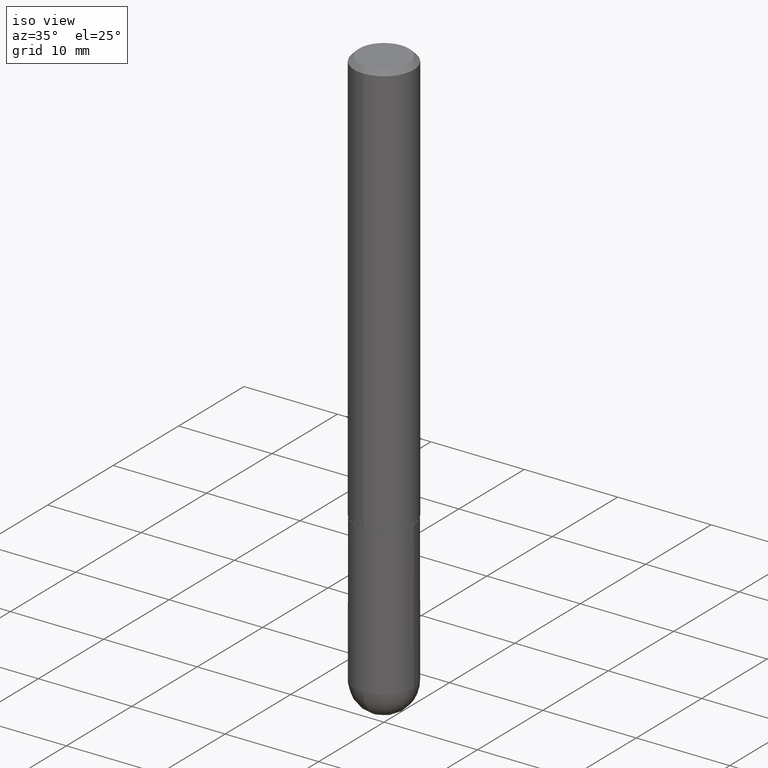
[diagram: clean part render]
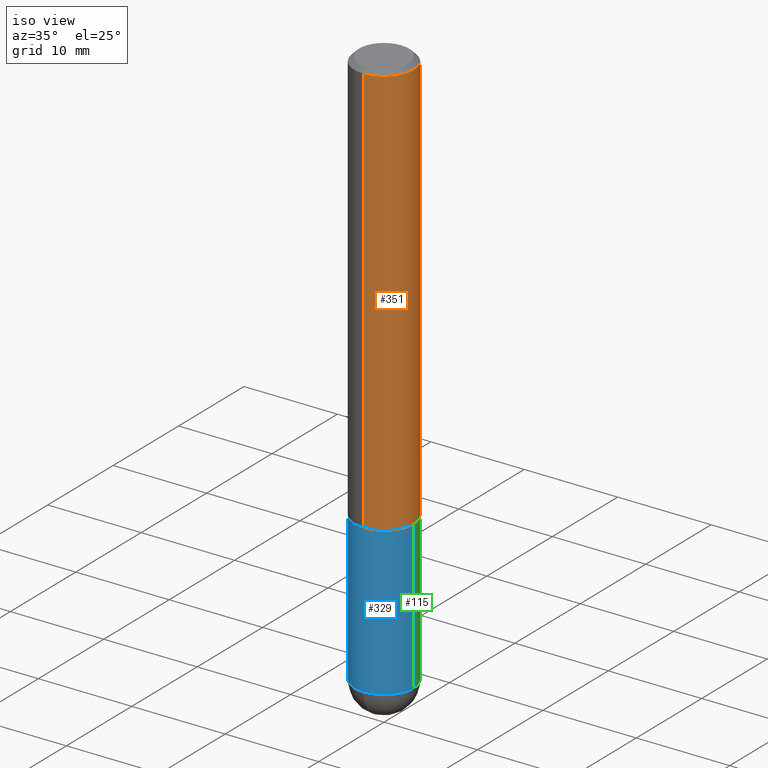
[diagram: same view with three faces highlighted in distinct colors, each labeled with its STEP entity id]
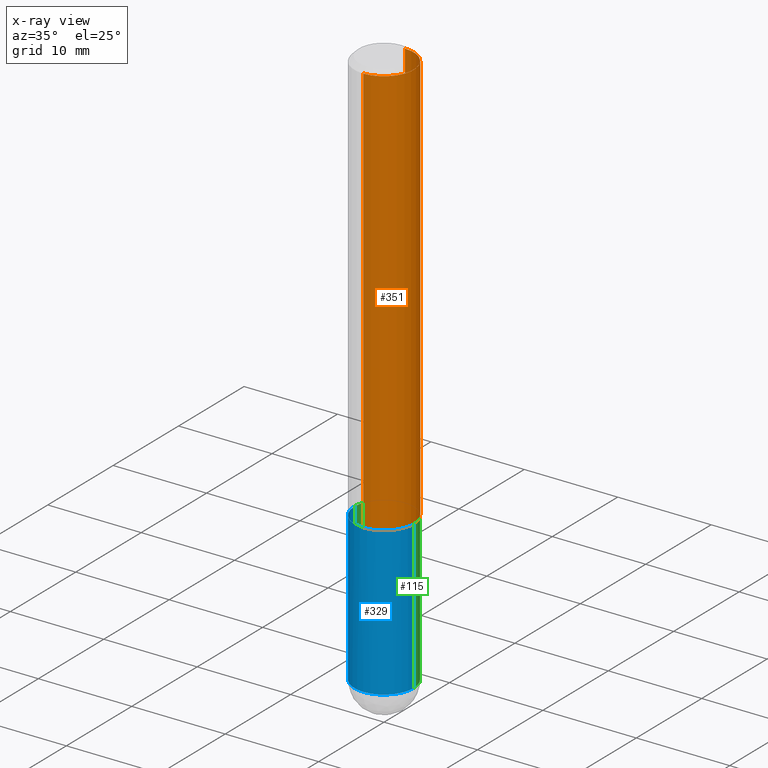
[diagram: x-ray of the same camera — body ghosted, the three highlighted faces saturated]
A machine part, iso view with three faces highlighted in distinct colors.
The next image is the same camera in x-ray (body ghosted, the three faces saturated) — at least one of them is partly hidden behind the body in this view.
Their STEP definitions:

[orange] entity #351 — the highlighted cylindrical surface (edge-blend (fillet) strip) has radius 3.175 mm, axis along (-0, 0, 1).
#24 = DIRECTION ( 'NONE',  ( -6.982962677686266711E-15, -1.000000000000000000, 3.491141472859906642E-15 ) ) ;
#27 = ORIENTED_EDGE ( 'NONE', *, *, #287, .T. ) ;
#28 = ORIENTED_EDGE ( 'NONE', *, *, #199, .F. ) ;
#38 = CARTESIAN_POINT ( 'NONE',  ( 4.277540027199021844E-29, -6.106006436031975850E-15, -1.749000000000000110 ) ) ;
#40 = AXIS2_PLACEMENT_3D ( 'NONE', #279, #216, #24 ) ;
#74 = CARTESIAN_POINT ( 'NONE',  ( 8.728703347107837333E-16, 0.1249999999999999306, -0.02000000000000046185 ) ) ;
#93 = ORIENTED_EDGE ( 'NONE', *, *, #258, .T. ) ;
#99 = VERTEX_POINT ( 'NONE', #409 ) ;
#108 = CARTESIAN_POINT ( 'NONE',  ( -8.728703347107841277E-16, -0.1250000000000001110, 4.363926841074887247E-16 ) ) ;
#140 = DIRECTION ( 'NONE',  ( -2.445706133332774021E-29, 3.491141472859906642E-15, 1.000000000000000000 ) ) ;
#199 = EDGE_CURVE ( 'NONE', #337, #99, #388, .T. ) ;
#201 = AXIS2_PLACEMENT_3D ( 'NONE', #38, #140, #363 ) ;
#211 = EDGE_CURVE ( 'NONE', #99, #288, #342, .T. ) ;
#212 = CARTESIAN_POINT ( 'NONE',  ( 4.891412266665553962E-31, -6.982282945719821124E-17, -0.02000000000000002470 ) ) ;
#216 = DIRECTION ( 'NONE',  ( -2.445706133332774021E-29, 3.491141472859906642E-15, 1.000000000000000000 ) ) ;
#217 = EDGE_LOOP ( 'NONE', ( #93, #27, #278, #28 ) ) ;
#222 = AXIS2_PLACEMENT_3D ( 'NONE', #212, #328, #238 ) ;
#238 = DIRECTION ( 'NONE',  ( -6.982962677686265922E-15, -1.000000000000000000, 3.483106191921935554E-15 ) ) ;
#241 = CARTESIAN_POINT ( 'NONE',  ( 8.881784197001479121E-16, 0.1249999999999941019, -1.749000000000000554 ) ) ;
#256 = VERTEX_POINT ( 'NONE', #241 ) ;
#258 = EDGE_CURVE ( 'NONE', #337, #256, #374, .T. ) ;
#272 = CARTESIAN_POINT ( 'NONE',  ( 8.881784197001260212E-16, 0.1250000000000001110, -4.363926841074887247E-16 ) ) ;
#276 = DIRECTION ( 'NONE',  ( -2.445706133332773740E-29, 3.491141472859906642E-15, 1.000000000000000000 ) ) ;
#278 = ORIENTED_EDGE ( 'NONE', *, *, #211, .F. ) ;
#279 = CARTESIAN_POINT ( 'NONE',  ( 0.000000000000000000, 0.000000000000000000, 0.000000000000000000 ) ) ;
#281 = VECTOR ( 'NONE', #276, 39.37007874015748143 ) ;
#287 = EDGE_CURVE ( 'NONE', #256, #288, #357, .T. ) ;
#288 = VERTEX_POINT ( 'NONE', #74 ) ;
#311 = CYLINDRICAL_SURFACE ( 'NONE', #40, 0.1250000000000001110 ) ;
#328 = DIRECTION ( 'NONE',  ( -2.445706133332774021E-29, 3.491141472859906642E-15, 1.000000000000000000 ) ) ;
#337 = VERTEX_POINT ( 'NONE', #396 ) ;
#342 = CIRCLE ( 'NONE', #222, 0.1250000000000000000 ) ;
#351 = ADVANCED_FACE ( 'NONE', ( #370 ), #311, .T. ) ;
#354 = VECTOR ( 'NONE', #389, 39.37007874015748143 ) ;
#357 = LINE ( 'NONE', #272, #281 ) ;
#363 = DIRECTION ( 'NONE',  ( -6.982962677686265133E-15, -1.000000000000000000, 4.370956789862812472E-15 ) ) ;
#370 = FACE_OUTER_BOUND ( 'NONE', #217, .T. ) ;
#374 = CIRCLE ( 'NONE', #201, 0.1250000000000002498 ) ;
#388 = LINE ( 'NONE', #108, #354 ) ;
#389 = DIRECTION ( 'NONE',  ( -2.445706133332773740E-29, 3.491141472859906642E-15, 1.000000000000000000 ) ) ;
#396 = CARTESIAN_POINT ( 'NONE',  ( -8.728703347107421208E-16, -0.1250000000000063560, -1.748999999999999666 ) ) ;
#409 = CARTESIAN_POINT ( 'NONE',  ( -8.575622497214408537E-16, -0.1250000000000000555, -0.01999999999999959102 ) ) ;

[blue] entity #329 — the highlighted cylindrical surface (edge-blend (fillet) strip) has radius 3.175 mm, axis along (-0, 0, 1).
#2 = CARTESIAN_POINT ( 'NONE',  ( 0.1250000000000000000, -8.074050596074771916E-15, -2.375000000000000000 ) ) ;
#4 = DIRECTION ( 'NONE',  ( -2.445468806185136597E-29, 3.491481338843145583E-15, 1.000000000000000000 ) ) ;
#5 = CARTESIAN_POINT ( 'NONE',  ( -0.1250000000000000000, -6.313001841663863345E-15, -1.750000000000000222 ) ) ;
#18 = EDGE_CURVE ( 'NONE', #42, #239, #164, .T. ) ;
#42 = VERTEX_POINT ( 'NONE', #2 ) ;
#58 = VERTEX_POINT ( 'NONE', #72 ) ;
#65 = CARTESIAN_POINT ( 'NONE',  ( 5.807988414689700538E-29, -8.292268179752471696E-15, -2.375000000000000000 ) ) ;
#72 = CARTESIAN_POINT ( 'NONE',  ( -8.881784197000694204E-16, -0.1250000000000086320, -2.374999999999999556 ) ) ;
#73 = EDGE_CURVE ( 'NONE', #84, #153, #408, .T. ) ;
#84 = VERTEX_POINT ( 'NONE', #200 ) ;
#85 = DIRECTION ( 'NONE',  ( -2.445468806185136597E-29, 3.491481338843145583E-15, 1.000000000000000000 ) ) ;
#86 = EDGE_LOOP ( 'NONE', ( #335, #280, #401, #118, #249 ) ) ;
#94 = AXIS2_PLACEMENT_3D ( 'NONE', #285, #148, #277 ) ;
#100 = EDGE_CURVE ( 'NONE', #58, #42, #262, .T. ) ;
#105 = EDGE_CURVE ( 'NONE', #84, #58, #333, .T. ) ;
#113 = CYLINDRICAL_SURFACE ( 'NONE', #385, 0.1250000000000000000 ) ;
#118 = ORIENTED_EDGE ( 'NONE', *, *, #18, .T. ) ;
#134 = DIRECTION ( 'NONE',  ( 1.000000000000000000, -6.982962677686270655E-15, 0.000000000000000000 ) ) ;
#148 = DIRECTION ( 'NONE',  ( -2.445468806185136597E-29, 3.491481338843145583E-15, 1.000000000000000000 ) ) ;
#150 = DIRECTION ( 'NONE',  ( 1.000000000000000000, -6.982962677686266711E-15, 4.876176775795935793E-29 ) ) ;
#153 = VERTEX_POINT ( 'NONE', #5 ) ;
#164 = LINE ( 'NONE', #380, #360 ) ;
#196 = DIRECTION ( 'NONE',  ( -2.445468806185136877E-29, 3.491481338843145188E-15, 1.000000000000000000 ) ) ;
#200 = CARTESIAN_POINT ( 'NONE',  ( -0.1250000000000000000, -6.313001841663864134E-15, -2.375000000000000000 ) ) ;
#205 = CARTESIAN_POINT ( 'NONE',  ( 0.1250000000000000000, -6.982962677686288010E-15, -1.750000000000000222 ) ) ;
#228 = AXIS2_PLACEMENT_3D ( 'NONE', #299, #321, #378 ) ;
#233 = DIRECTION ( 'NONE',  ( -2.445468806185136877E-29, 3.491481338843145188E-15, 1.000000000000000000 ) ) ;
#239 = VERTEX_POINT ( 'NONE', #205 ) ;
#245 = CIRCLE ( 'NONE', #94, 0.1250000000000000000 ) ;
#249 = ORIENTED_EDGE ( 'NONE', *, *, #392, .F. ) ;
#257 = CARTESIAN_POINT ( 'NONE',  ( -0.1250000000000000000, 8.881784197001252323E-16, -6.148668862818632227E-30 ) ) ;
#262 = CIRCLE ( 'NONE', #228, 0.1250000000000000000 ) ;
#277 = DIRECTION ( 'NONE',  ( 1.000000000000000000, -6.982962677686262766E-15, 0.000000000000000000 ) ) ;
#280 = ORIENTED_EDGE ( 'NONE', *, *, #105, .T. ) ;
#285 = CARTESIAN_POINT ( 'NONE',  ( 4.279570410823989044E-29, -6.110092342975505460E-15, -1.750000000000000222 ) ) ;
#296 = AXIS2_PLACEMENT_3D ( 'NONE', #65, #4, #134 ) ;
#299 = CARTESIAN_POINT ( 'NONE',  ( 5.807988414689700538E-29, -8.292268179752471696E-15, -2.375000000000000000 ) ) ;
#321 = DIRECTION ( 'NONE',  ( -2.445468806185136597E-29, 3.491481338843145583E-15, 1.000000000000000000 ) ) ;
#329 = ADVANCED_FACE ( 'NONE', ( #336 ), #113, .T. ) ;
#332 = CARTESIAN_POINT ( 'NONE',  ( 0.000000000000000000, 0.000000000000000000, 0.000000000000000000 ) ) ;
#333 = CIRCLE ( 'NONE', #296, 0.1250000000000000000 ) ;
#335 = ORIENTED_EDGE ( 'NONE', *, *, #73, .F. ) ;
#336 = FACE_OUTER_BOUND ( 'NONE', #86, .T. ) ;
#347 = VECTOR ( 'NONE', #196, 39.37007874015748143 ) ;
#360 = VECTOR ( 'NONE', #233, 39.37007874015748143 ) ;
#378 = DIRECTION ( 'NONE',  ( 1.000000000000000000, -6.982962677686270655E-15, 0.000000000000000000 ) ) ;
#380 = CARTESIAN_POINT ( 'NONE',  ( 0.1250000000000000000, -8.728703347107833388E-16, 6.095220969744919741E-30 ) ) ;
#385 = AXIS2_PLACEMENT_3D ( 'NONE', #332, #85, #150 ) ;
#392 = EDGE_CURVE ( 'NONE', #153, #239, #245, .T. ) ;
#401 = ORIENTED_EDGE ( 'NONE', *, *, #100, .T. ) ;
#408 = LINE ( 'NONE', #257, #347 ) ;

[green] entity #115 — the highlighted cylindrical surface (edge-blend (fillet) strip) has radius 3.175 mm, axis along (-0, 0, 1).
#2 = CARTESIAN_POINT ( 'NONE',  ( 0.1250000000000000000, -8.074050596074771916E-15, -2.375000000000000000 ) ) ;
#5 = CARTESIAN_POINT ( 'NONE',  ( -0.1250000000000000000, -6.313001841663863345E-15, -1.750000000000000222 ) ) ;
#10 = CARTESIAN_POINT ( 'NONE',  ( 5.807988414689700538E-29, -8.292268179752471696E-15, -2.375000000000000000 ) ) ;
#13 = CARTESIAN_POINT ( 'NONE',  ( 4.279570410823989044E-29, -6.110092342975505460E-15, -1.750000000000000222 ) ) ;
#18 = EDGE_CURVE ( 'NONE', #42, #239, #164, .T. ) ;
#42 = VERTEX_POINT ( 'NONE', #2 ) ;
#43 = CARTESIAN_POINT ( 'NONE',  ( 5.807988414689700538E-29, -8.292268179752471696E-15, -2.375000000000000000 ) ) ;
#62 = CIRCLE ( 'NONE', #301, 0.1250000000000000000 ) ;
#73 = EDGE_CURVE ( 'NONE', #84, #153, #408, .T. ) ;
#75 = DIRECTION ( 'NONE',  ( -2.445468806185136597E-29, 3.491481338843145583E-15, 1.000000000000000000 ) ) ;
#84 = VERTEX_POINT ( 'NONE', #200 ) ;
#102 = CARTESIAN_POINT ( 'NONE',  ( 0.000000000000000000, 0.000000000000000000, 0.000000000000000000 ) ) ;
#110 = DIRECTION ( 'NONE',  ( 1.000000000000000000, -6.982962677686270655E-15, 0.000000000000000000 ) ) ;
#115 = ADVANCED_FACE ( 'NONE', ( #383 ), #162, .T. ) ;
#116 = ORIENTED_EDGE ( 'NONE', *, *, #135, .T. ) ;
#122 = AXIS2_PLACEMENT_3D ( 'NONE', #43, #175, #110 ) ;
#135 = EDGE_CURVE ( 'NONE', #373, #84, #255, .T. ) ;
#137 = AXIS2_PLACEMENT_3D ( 'NONE', #102, #234, #376 ) ;
#138 = DIRECTION ( 'NONE',  ( -2.445468806185136597E-29, 3.491481338843145583E-15, 1.000000000000000000 ) ) ;
#144 = CARTESIAN_POINT ( 'NONE',  ( 8.728703347108403340E-16, 0.1249999999999915623, -2.375000000000000888 ) ) ;
#146 = ORIENTED_EDGE ( 'NONE', *, *, #73, .T. ) ;
#153 = VERTEX_POINT ( 'NONE', #5 ) ;
#162 = CYLINDRICAL_SURFACE ( 'NONE', #137, 0.1250000000000000000 ) ;
#164 = LINE ( 'NONE', #380, #360 ) ;
#168 = EDGE_LOOP ( 'NONE', ( #116, #146, #283, #375, #340 ) ) ;
#170 = DIRECTION ( 'NONE',  ( 1.000000000000000000, -6.982962677686262766E-15, 0.000000000000000000 ) ) ;
#171 = EDGE_CURVE ( 'NONE', #239, #153, #62, .T. ) ;
#175 = DIRECTION ( 'NONE',  ( -2.445468806185136597E-29, 3.491481338843145583E-15, 1.000000000000000000 ) ) ;
#196 = DIRECTION ( 'NONE',  ( -2.445468806185136877E-29, 3.491481338843145188E-15, 1.000000000000000000 ) ) ;
#200 = CARTESIAN_POINT ( 'NONE',  ( -0.1250000000000000000, -6.313001841663864134E-15, -2.375000000000000000 ) ) ;
#205 = CARTESIAN_POINT ( 'NONE',  ( 0.1250000000000000000, -6.982962677686288010E-15, -1.750000000000000222 ) ) ;
#233 = DIRECTION ( 'NONE',  ( -2.445468806185136877E-29, 3.491481338843145188E-15, 1.000000000000000000 ) ) ;
#234 = DIRECTION ( 'NONE',  ( -2.445468806185136597E-29, 3.491481338843145583E-15, 1.000000000000000000 ) ) ;
#237 = DIRECTION ( 'NONE',  ( 1.000000000000000000, -6.982962677686270655E-15, 0.000000000000000000 ) ) ;
#239 = VERTEX_POINT ( 'NONE', #205 ) ;
#255 = CIRCLE ( 'NONE', #122, 0.1250000000000000000 ) ;
#257 = CARTESIAN_POINT ( 'NONE',  ( -0.1250000000000000000, 8.881784197001252323E-16, -6.148668862818632227E-30 ) ) ;
#268 = AXIS2_PLACEMENT_3D ( 'NONE', #10, #138, #237 ) ;
#283 = ORIENTED_EDGE ( 'NONE', *, *, #171, .F. ) ;
#298 = EDGE_CURVE ( 'NONE', #42, #373, #306, .T. ) ;
#301 = AXIS2_PLACEMENT_3D ( 'NONE', #13, #75, #170 ) ;
#306 = CIRCLE ( 'NONE', #268, 0.1250000000000000000 ) ;
#340 = ORIENTED_EDGE ( 'NONE', *, *, #298, .T. ) ;
#347 = VECTOR ( 'NONE', #196, 39.37007874015748143 ) ;
#360 = VECTOR ( 'NONE', #233, 39.37007874015748143 ) ;
#373 = VERTEX_POINT ( 'NONE', #144 ) ;
#375 = ORIENTED_EDGE ( 'NONE', *, *, #18, .F. ) ;
#376 = DIRECTION ( 'NONE',  ( 1.000000000000000000, -6.982962677686266711E-15, 4.876176775795935793E-29 ) ) ;
#380 = CARTESIAN_POINT ( 'NONE',  ( 0.1250000000000000000, -8.728703347107833388E-16, 6.095220969744919741E-30 ) ) ;
#383 = FACE_OUTER_BOUND ( 'NONE', #168, .T. ) ;
#408 = LINE ( 'NONE', #257, #347 ) ;